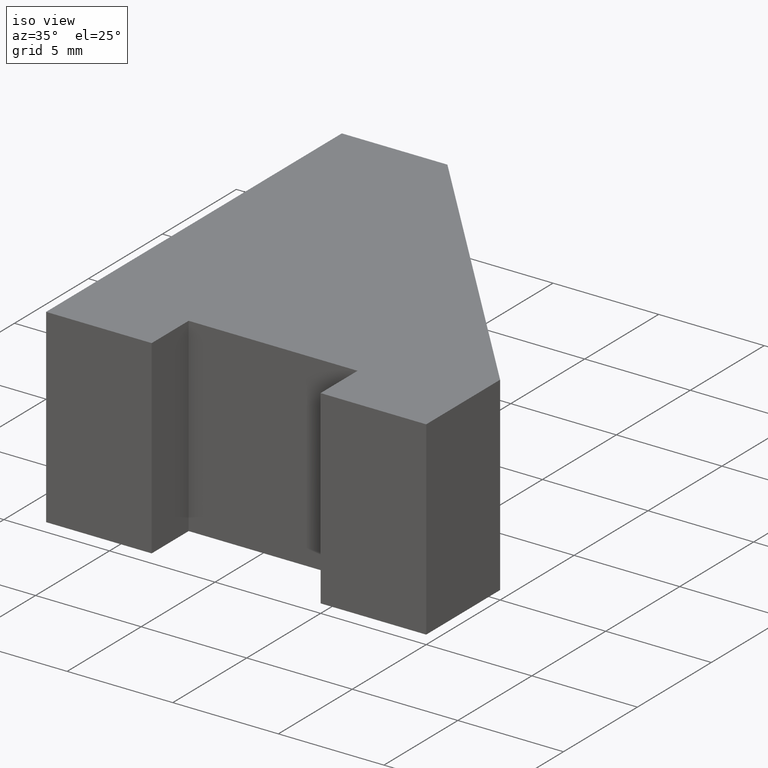
[diagram: clean part render]
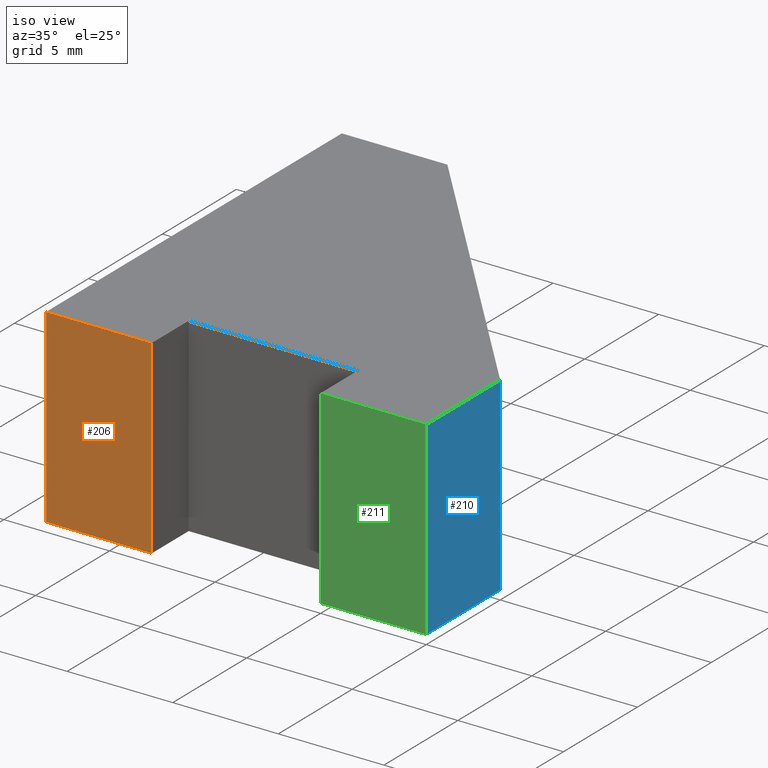
[diagram: same view with three faces highlighted in distinct colors, each labeled with its STEP entity id]
A machine part, iso view with three faces highlighted in distinct colors.
Their STEP definitions:

[orange] entity #206 — the highlighted planar face has unit normal (0, -1, 0).
#20=FACE_OUTER_BOUND('',#31,.T.);
#31=EDGE_LOOP('',(#158,#159,#160,#161));
#43=LINE('',#312,#70);
#53=LINE('',#331,#80);
#54=LINE('',#334,#81);
#55=LINE('',#335,#82);
#70=VECTOR('',#256,10.);
#80=VECTOR('',#272,10.);
#81=VECTOR('',#275,10.);
#82=VECTOR('',#276,10.);
#97=VERTEX_POINT('',#309);
#98=VERTEX_POINT('',#311);
#104=VERTEX_POINT('',#329);
#105=VERTEX_POINT('',#333);
#115=EDGE_CURVE('',#98,#97,#43,.T.);
#125=EDGE_CURVE('',#104,#97,#53,.T.);
#126=EDGE_CURVE('',#104,#105,#54,.T.);
#127=EDGE_CURVE('',#105,#98,#55,.T.);
#158=ORIENTED_EDGE('',*,*,#126,.T.);
#159=ORIENTED_EDGE('',*,*,#127,.T.);
#160=ORIENTED_EDGE('',*,*,#115,.T.);
#161=ORIENTED_EDGE('',*,*,#125,.F.);
#195=PLANE('',#240);
#206=ADVANCED_FACE('',(#20),#195,.T.);
#240=AXIS2_PLACEMENT_3D('',#332,#273,#274);
#256=DIRECTION('',(1.,5.55111512312578E-16,0.));
#272=DIRECTION('',(0.,0.,-1.));
#273=DIRECTION('center_axis',(5.55111512312578E-16,-1.,0.));
#274=DIRECTION('ref_axis',(0.,0.,-1.));
#275=DIRECTION('',(-1.,-5.55111512312578E-16,0.));
#276=DIRECTION('',(0.,0.,-1.));
#309=CARTESIAN_POINT('',(-13.,2.77555756156289E-15,-4.5));
#311=CARTESIAN_POINT('',(-18.,0.,-4.5));
#312=CARTESIAN_POINT('',(-13.,2.77555756156289E-15,-4.5));
#329=CARTESIAN_POINT('',(-13.,2.77555756156289E-15,4.5));
#331=CARTESIAN_POINT('',(-13.,2.77555756156289E-15,0.));
#332=CARTESIAN_POINT('Origin',(-13.,2.77555756156289E-15,0.));
#333=CARTESIAN_POINT('',(-18.,0.,4.5));
#334=CARTESIAN_POINT('',(-13.,2.77555756156289E-15,4.5));
#335=CARTESIAN_POINT('',(-18.,0.,0.));

[blue] entity #210 — the highlighted planar face has unit normal (1, 0, 0).
#24=FACE_OUTER_BOUND('',#35,.T.);
#35=EDGE_LOOP('',(#174,#175,#176,#177));
#38=LINE('',#302,#65);
#61=LINE('',#347,#88);
#62=LINE('',#350,#89);
#63=LINE('',#351,#90);
#65=VECTOR('',#251,10.);
#88=VECTOR('',#288,10.);
#89=VECTOR('',#291,10.);
#90=VECTOR('',#292,10.);
#92=VERTEX_POINT('',#300);
#93=VERTEX_POINT('',#301);
#108=VERTEX_POINT('',#345);
#109=VERTEX_POINT('',#349);
#110=EDGE_CURVE('',#92,#93,#38,.T.);
#133=EDGE_CURVE('',#108,#93,#61,.T.);
#134=EDGE_CURVE('',#108,#109,#62,.T.);
#135=EDGE_CURVE('',#92,#109,#63,.T.);
#174=ORIENTED_EDGE('',*,*,#134,.T.);
#175=ORIENTED_EDGE('',*,*,#135,.F.);
#176=ORIENTED_EDGE('',*,*,#110,.T.);
#177=ORIENTED_EDGE('',*,*,#133,.F.);
#199=PLANE('',#244);
#210=ADVANCED_FACE('',(#24),#199,.T.);
#244=AXIS2_PLACEMENT_3D('',#348,#289,#290);
#251=DIRECTION('',(-1.94595605956014E-16,1.,0.));
#288=DIRECTION('',(0.,0.,-1.));
#289=DIRECTION('center_axis',(1.,1.94595605956014E-16,0.));
#290=DIRECTION('ref_axis',(0.,0.,-1.));
#291=DIRECTION('',(1.94595605956014E-16,-1.,0.));
#292=DIRECTION('',(0.,0.,1.));
#300=CARTESIAN_POINT('',(3.19342407903039E-15,0.,-4.5));
#301=CARTESIAN_POINT('',(2.22044604925031E-15,5.,-4.5));
#302=CARTESIAN_POINT('',(2.22044604925031E-15,5.,-4.5));
#345=CARTESIAN_POINT('',(2.22044604925031E-15,5.,4.5));
#347=CARTESIAN_POINT('',(2.22044604925031E-15,5.,0.));
#348=CARTESIAN_POINT('Origin',(2.22044604925031E-15,5.,0.));
#349=CARTESIAN_POINT('',(3.19342407903039E-15,0.,4.5));
#350=CARTESIAN_POINT('',(2.22044604925031E-15,5.,4.5));
#351=CARTESIAN_POINT('',(3.19342407903039E-15,0.,0.));

[green] entity #211 — the highlighted planar face has unit normal (-0, -1, 0).
#25=FACE_OUTER_BOUND('',#36,.T.);
#36=EDGE_LOOP('',(#178,#179,#180,#181));
#39=LINE('',#304,#66);
#49=LINE('',#323,#76);
#63=LINE('',#351,#90);
#64=LINE('',#353,#91);
#66=VECTOR('',#252,10.);
#76=VECTOR('',#264,10.);
#90=VECTOR('',#292,10.);
#91=VECTOR('',#295,10.);
#92=VERTEX_POINT('',#300);
#94=VERTEX_POINT('',#303);
#101=VERTEX_POINT('',#319);
#109=VERTEX_POINT('',#349);
#111=EDGE_CURVE('',#94,#92,#39,.T.);
#121=EDGE_CURVE('',#101,#94,#49,.T.);
#135=EDGE_CURVE('',#92,#109,#63,.T.);
#136=EDGE_CURVE('',#109,#101,#64,.T.);
#178=ORIENTED_EDGE('',*,*,#136,.T.);
#179=ORIENTED_EDGE('',*,*,#121,.T.);
#180=ORIENTED_EDGE('',*,*,#111,.T.);
#181=ORIENTED_EDGE('',*,*,#135,.T.);
#200=PLANE('',#245);
#211=ADVANCED_FACE('',(#25),#200,.T.);
#245=AXIS2_PLACEMENT_3D('',#352,#293,#294);
#252=DIRECTION('',(1.,-2.08372717605747E-17,0.));
#264=DIRECTION('',(0.,0.,-1.));
#292=DIRECTION('',(0.,0.,1.));
#293=DIRECTION('center_axis',(-2.08372717605747E-17,-1.,0.));
#294=DIRECTION('ref_axis',(0.,0.,-1.));
#295=DIRECTION('',(-1.,2.08372717605747E-17,0.));
#300=CARTESIAN_POINT('',(3.19342407903039E-15,0.,-4.5));
#303=CARTESIAN_POINT('',(-5.,1.04186358802874E-16,-4.5));
#304=CARTESIAN_POINT('',(3.19342407903039E-15,0.,-4.5));
#319=CARTESIAN_POINT('',(-5.,1.04186358802874E-16,4.5));
#323=CARTESIAN_POINT('',(-5.,1.04186358802874E-16,0.));
#349=CARTESIAN_POINT('',(3.19342407903039E-15,0.,4.5));
#351=CARTESIAN_POINT('',(3.19342407903039E-15,0.,0.));
#352=CARTESIAN_POINT('Origin',(3.19342407903039E-15,0.,0.));
#353=CARTESIAN_POINT('',(3.19342407903039E-15,0.,4.5));